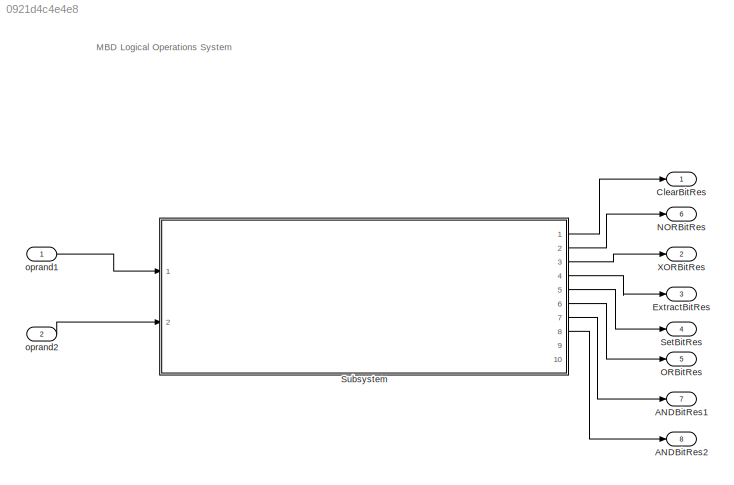
MODEL slx_0921d4c4e4e8
KIND model
CONFIG AbsTol = auto
CONFIG EnableMultiTasking = off
CONFIG FixedStep = auto
CONFIG MaxStep = auto
CONFIG MinStep = auto
CONFIG RelTol = 1e-3
CONFIG SampleTimeConstraint = Unconstrained
CONFIG SolverName = VariableStepAuto
CONFIG StartTime = 0.0
CONFIG StopTime = 10.0
BLOCK [Outport] ANDBitRes1
  Port = 7
BLOCK [Outport] ANDBitRes2
  Port = 8
BLOCK [Outport] ClearBitRes
BLOCK [Outport] ExtractBitRes
  Port = 3
BLOCK [Outport] NORBitRes
  Port = 6
BLOCK [Outport] ORBitRes
  Port = 5
BLOCK [Outport] SetBitRes
  Port = 4
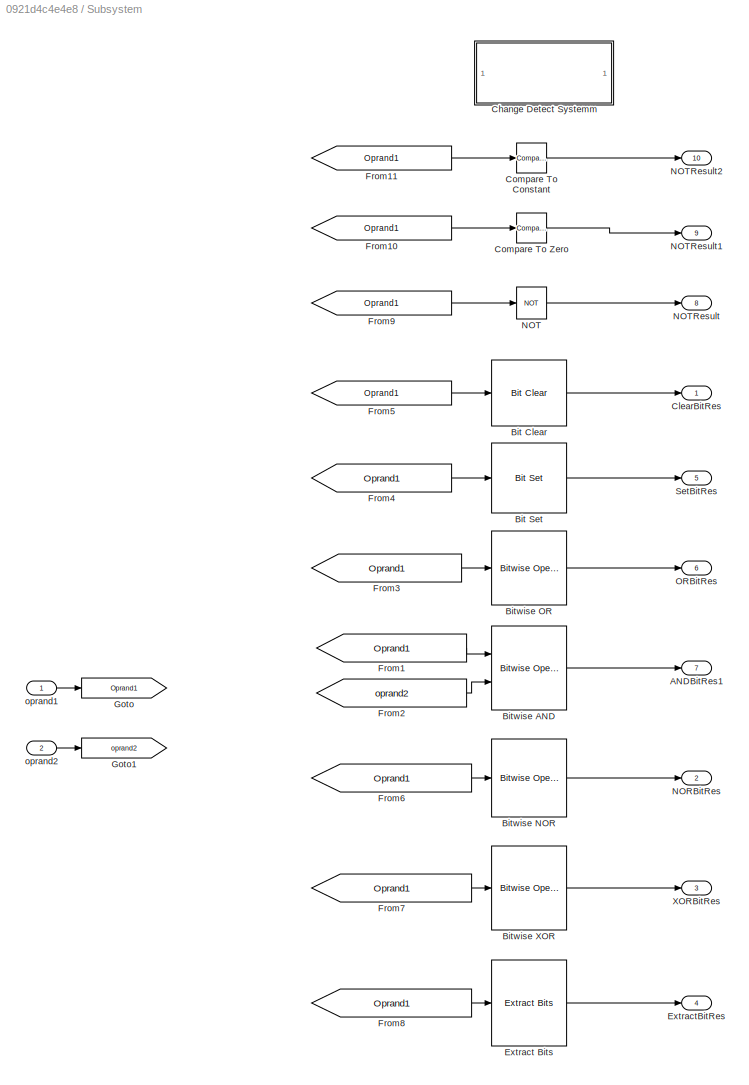
BLOCK [SubSystem] Subsystem
  Ports = [2, 10]
  RequestExecContextInheritance = off
BLOCK [Outport] Subsystem/ANDBitRes1
  Port = 7
BLOCK [Reference] Subsystem/Bit Clear  REF=simulink/Logic and Bit
Operations/Bit Clear
  Ports = [1, 1]
  SourceBlock = simulink/Logic and Bit\nOperations/Bit Clear
  SourceProductBaseCode = SL
  SourceType = Bit Clear
BLOCK [Reference] Subsystem/Bit Set  REF=simulink/Logic and Bit
Operations/Bit Set
  Ports = [1, 1]
  SourceBlock = simulink/Logic and Bit\nOperations/Bit Set
  SourceProductBaseCode = SL
  SourceType = Bit Set
BLOCK [Reference] Subsystem/Bitwise AND  REF=simulink/Logic and Bit
Operations/Bitwise
Operator
  Ports = [2, 1]
  SourceBlock = simulink/Logic and Bit\nOperations/Bitwise\nOperator
  SourceProductBaseCode = SL
  SourceType = Bitwise Operator
BLOCK [Reference] Subsystem/Bitwise NOR  REF=simulink/Logic and Bit
Operations/Bitwise
Operator
  Ports = [1, 1]
  SourceBlock = simulink/Logic and Bit\nOperations/Bitwise\nOperator
  SourceProductBaseCode = SL
  SourceType = Bitwise Operator
BLOCK [Reference] Subsystem/Bitwise OR  REF=simulink/Logic and Bit
Operations/Bitwise
Operator
  Ports = [1, 1]
  SourceBlock = simulink/Logic and Bit\nOperations/Bitwise\nOperator
  SourceProductBaseCode = SL
  SourceType = Bitwise Operator
BLOCK [Reference] Subsystem/Bitwise XOR  REF=simulink/Logic and Bit
Operations/Bitwise
Operator
  Ports = [1, 1]
  SourceBlock = simulink/Logic and Bit\nOperations/Bitwise\nOperator
  SourceProductBaseCode = SL
  SourceType = Bitwise Operator
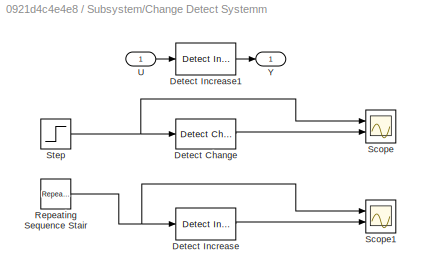
BLOCK [SubSystem] Subsystem/Change Detect Systemm
  Ports = [1, 1]
  RequestExecContextInheritance = off
BLOCK [Reference] Subsystem/Change Detect Systemm/Detect Change  REF=simulink/Logic and Bit
Operations/Detect
Change
  Ports = [1, 1]
  SourceBlock = simulink/Logic and Bit\nOperations/Detect\nChange
  SourceProductBaseCode = SL
  SourceType = Detect Change
BLOCK [Reference] Subsystem/Change Detect Systemm/Detect Increase  REF=simulink/Logic and Bit
Operations/Detect
Increase
  Ports = [1, 1]
  SourceBlock = simulink/Logic and Bit\nOperations/Detect\nIncrease
  SourceProductBaseCode = SL
  SourceType = Detect Increase
BLOCK [Reference] Subsystem/Change Detect Systemm/Detect Increase1  REF=simulink/Logic and Bit
Operations/Detect
Increase
  Ports = [1, 1]
  SourceBlock = simulink/Logic and Bit\nOperations/Detect\nIncrease
  SourceProductBaseCode = SL
  SourceType = Detect Increase
BLOCK [Reference] Subsystem/Change Detect Systemm/Repeating Sequence Stair  REF=simulink/Sources/Repeating
Sequence
Stair
  Ports = [0, 1]
  SourceBlock = simulink/Sources/Repeating\nSequence\nStair
  SourceProductBaseCode = SL
  SourceType = Repeating Sequence Stair
BLOCK [Scope] Subsystem/Change Detect Systemm/Scope
  Floating = off
  NumInputPorts = 2
  Ports = [2]
  ScopeSpecificationString = Simulink.scopes.TimeScopeBlockCfg('CurrentConfiguration', extmgr.ConfigurationSet(extmgr.Configuration('Core','General UI',true),extmgr.Configuration('Core','Source UI',true),extmgr.Configuration('Sources','WiredSimulink',true),extmgr.Configuration('Visuals','Time Domain',true,'SerializedDisplays',{struct('MinYLimReal','-0.125','MaxYLimReal','1.125','YLabelReal','','MinYLimMag','0.00000','MaxYLimM...<+2051ch>
BLOCK [Scope] Subsystem/Change Detect Systemm/Scope1
  Floating = off
  NumInputPorts = 2
  Ports = [2]
  ScopeSpecificationString = Simulink.scopes.TimeScopeBlockCfg('CurrentConfiguration', extmgr.ConfigurationSet(extmgr.Configuration('Core','General UI',true),extmgr.Configuration('Core','Source UI',true),extmgr.Configuration('Sources','WiredSimulink',true,'DataLoggingVariableName','ScopeData1'),extmgr.Configuration('Visuals','Time Domain',true,'SerializedDisplays',{struct('MinYLimReal','-0.125','MaxYLimReal','1.125','YLabelRe...<+2090ch>
BLOCK [Step] Subsystem/Change Detect Systemm/Step
  Time = 2
BLOCK [Inport] Subsystem/Change Detect Systemm/U
BLOCK [Outport] Subsystem/Change Detect Systemm/Y
BLOCK [Outport] Subsystem/ClearBitRes
BLOCK [Reference] Subsystem/Compare To Constant  REF=simulink/Logic and Bit
Operations/Compare
To Constant
  Ports = [1, 1]
  SourceBlock = simulink/Logic and Bit\nOperations/Compare\nTo Constant
  SourceProductBaseCode = SL
  SourceType = Compare To Constant
BLOCK [Reference] Subsystem/Compare To Zero  REF=simulink/Logic and Bit
Operations/Compare
To Zero
  Ports = [1, 1]
  SourceBlock = simulink/Logic and Bit\nOperations/Compare\nTo Zero
  SourceProductBaseCode = SL
  SourceType = Compare To Zero
BLOCK [Reference] Subsystem/Extract Bits  REF=simulink/Logic and Bit
Operations/Extract Bits
  Ports = [1, 1]
  SourceBlock = simulink/Logic and Bit\nOperations/Extract Bits
  SourceProductBaseCode = SL
  SourceType = Extract Bits
BLOCK [Outport] Subsystem/ExtractBitRes
  Port = 4
BLOCK [From] Subsystem/From1
  GotoTag = Oprand1
BLOCK [From] Subsystem/From10
  GotoTag = Oprand1
BLOCK [From] Subsystem/From11
  GotoTag = Oprand1
BLOCK [From] Subsystem/From2
  GotoTag = oprand2
BLOCK [From] Subsystem/From3
  GotoTag = Oprand1
BLOCK [From] Subsystem/From4
  GotoTag = Oprand1
BLOCK [From] Subsystem/From5
  GotoTag = Oprand1
BLOCK [From] Subsystem/From6
  GotoTag = Oprand1
BLOCK [From] Subsystem/From7
  GotoTag = Oprand1
BLOCK [From] Subsystem/From8
  GotoTag = Oprand1
BLOCK [From] Subsystem/From9
  GotoTag = Oprand1
BLOCK [Goto] Subsystem/Goto
  GotoTag = Oprand1
BLOCK [Goto] Subsystem/Goto1
  GotoTag = oprand2
BLOCK [Outport] Subsystem/NORBitRes
  Port = 2
BLOCK [Logic] Subsystem/NOT
  AllPortsSameDT = off
  IconShape = distinctive
  Operator = NOT
  OutDataTypeStr = boolean
  Ports = [1, 1]
BLOCK [Outport] Subsystem/NOTResult
  Port = 8
BLOCK [Outport] Subsystem/NOTResult1
  OutDataTypeStr = boolean
  Port = 9
BLOCK [Outport] Subsystem/NOTResult2
  OutDataTypeStr = boolean
  Port = 10
BLOCK [Outport] Subsystem/ORBitRes
  Port = 6
BLOCK [Outport] Subsystem/SetBitRes
  Port = 5
BLOCK [Outport] Subsystem/XORBitRes
  Port = 3
BLOCK [Inport] Subsystem/oprand1
  OutDataTypeStr = uint8
BLOCK [Inport] Subsystem/oprand2
  OutDataTypeStr = uint8
  Port = 2
BLOCK [Outport] XORBitRes
  Port = 2
BLOCK [Inport] oprand1
BLOCK [Inport] oprand2
  OutDataTypeStr = uint8
  Port = 2
ANNOTATION (root): MBD Logical Operations System
LINE Subsystem/Bit Clear:1 -> Subsystem/ClearBitRes:1
LINE Subsystem/Bit Set:1 -> Subsystem/SetBitRes:1
LINE Subsystem/Bitwise AND:1 -> Subsystem/ANDBitRes1:1
LINE Subsystem/Bitwise NOR:1 -> Subsystem/NORBitRes:1
LINE Subsystem/Bitwise OR:1 -> Subsystem/ORBitRes:1
LINE Subsystem/Bitwise XOR:1 -> Subsystem/XORBitRes:1
LINE Subsystem/Change Detect Systemm/Detect Change:1 -> Subsystem/Change Detect Systemm/Scope:2
LINE Subsystem/Change Detect Systemm/Detect Increase1:1 -> Subsystem/Change Detect Systemm/Y:1
LINE Subsystem/Change Detect Systemm/Detect Increase:1 -> Subsystem/Change Detect Systemm/Scope1:2
NET Subsystem/Change Detect Systemm/Repeating Sequence Stair:1 -> Subsystem/Change Detect Systemm/Detect Increase:1, Subsystem/Change Detect Systemm/Scope1:1
NET Subsystem/Change Detect Systemm/Step:1 -> Subsystem/Change Detect Systemm/Detect Change:1, Subsystem/Change Detect Systemm/Scope:1
LINE Subsystem/Change Detect Systemm/U:1 -> Subsystem/Change Detect Systemm/Detect Increase1:1
LINE Subsystem/Compare To Constant:1 -> Subsystem/NOTResult2:1
LINE Subsystem/Compare To Zero:1 -> Subsystem/NOTResult1:1
LINE Subsystem/Extract Bits:1 -> Subsystem/ExtractBitRes:1
LINE Subsystem/From10:1 -> Subsystem/Compare To Zero:1
LINE Subsystem/From11:1 -> Subsystem/Compare To Constant:1
LINE Subsystem/From1:1 -> Subsystem/Bitwise AND:1
LINE Subsystem/From2:1 -> Subsystem/Bitwise AND:2
LINE Subsystem/From3:1 -> Subsystem/Bitwise OR:1
LINE Subsystem/From4:1 -> Subsystem/Bit Set:1
LINE Subsystem/From5:1 -> Subsystem/Bit Clear:1
LINE Subsystem/From6:1 -> Subsystem/Bitwise NOR:1
LINE Subsystem/From7:1 -> Subsystem/Bitwise XOR:1
LINE Subsystem/From8:1 -> Subsystem/Extract Bits:1
LINE Subsystem/From9:1 -> Subsystem/NOT:1
LINE Subsystem/NOT:1 -> Subsystem/NOTResult:1
LINE Subsystem/oprand1:1 -> Subsystem/Goto:1
LINE Subsystem/oprand2:1 -> Subsystem/Goto1:1
LINE Subsystem:1 -> ClearBitRes:1
LINE Subsystem:2 -> NORBitRes:1
LINE Subsystem:3 -> XORBitRes:1
LINE Subsystem:4 -> ExtractBitRes:1
LINE Subsystem:5 -> SetBitRes:1
LINE Subsystem:6 -> ORBitRes:1
LINE Subsystem:7 -> ANDBitRes1:1
LINE Subsystem:8 -> ANDBitRes2:1
LINE oprand1:1 -> Subsystem:1
LINE oprand2:1 -> Subsystem:2
note: NET lines group one-source signal fan-out (src -> all destinations, sorted); 1:1 wires keep LINE
